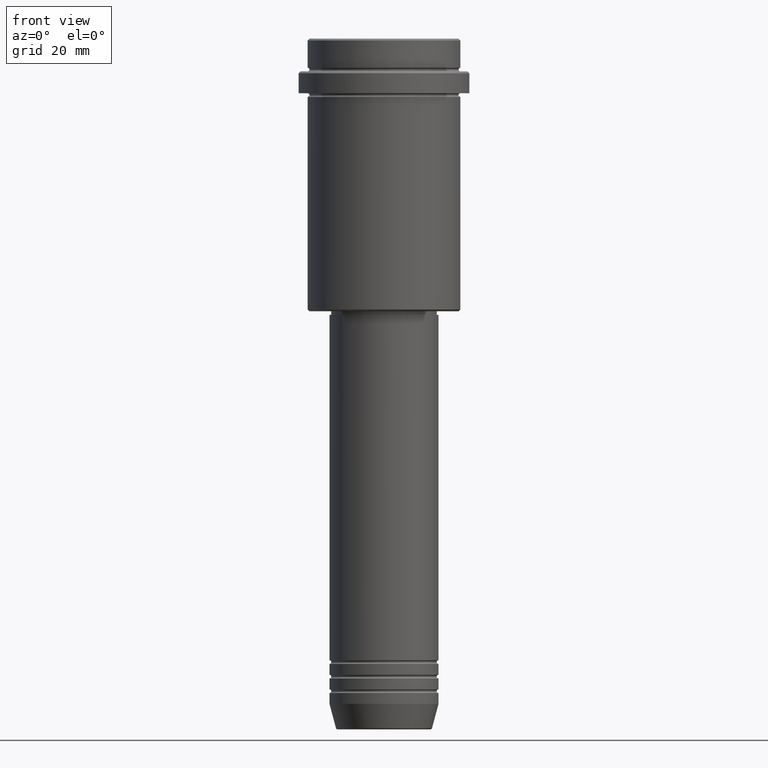
[diagram: clean part render]
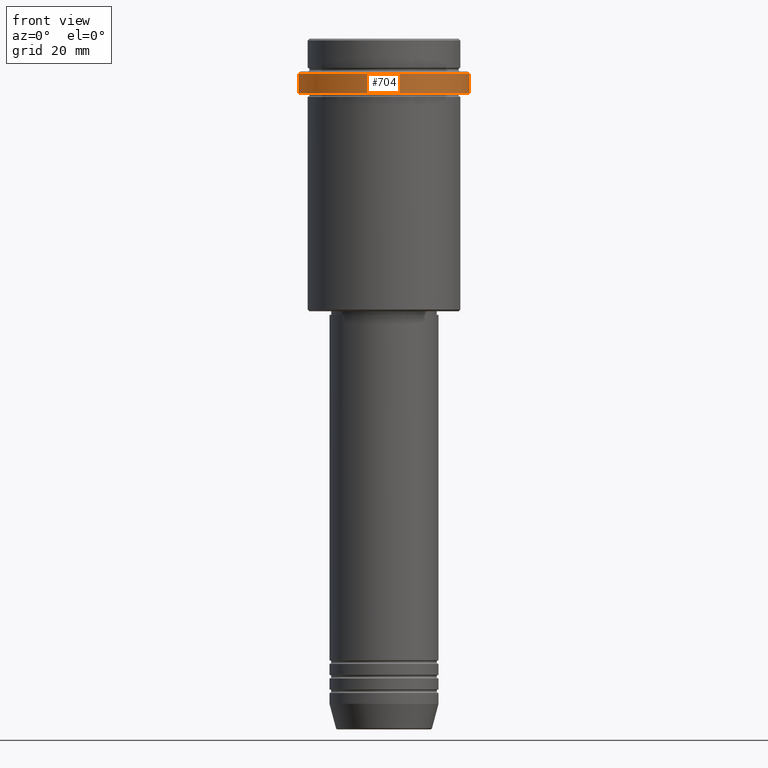
[diagram: same view with one face highlighted and labeled with its STEP entity id]
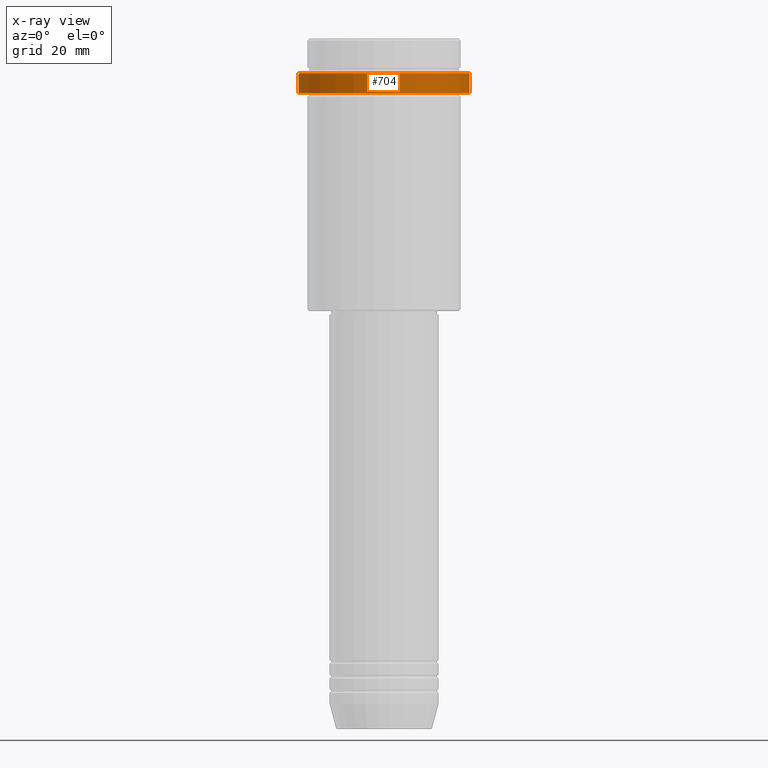
[diagram: x-ray of the same camera — body ghosted, the highlighted face saturated]
A machine part, front view. The second image highlights one B-rep face of the part: STEP entity #704.
The next image is the same camera in x-ray: the body ghosted, the highlighted face saturated — about 0% of this face is hidden behind the body in this view.
In plain terms, the highlighted cylindrical surface (partial cylindrical patch) has radius 23.5 mm, axis along (-0, -0, 1).
Its self-contained STEP definition (entity closure, byte-faithful):
#72 = CIRCLE ( 'NONE', #625, 23.50000000000000000 ) ;
#78 = CARTESIAN_POINT ( 'NONE',  ( 23.50000000000000000, 0.000000000000000000, 0.000000000000000000 ) ) ;
#101 = EDGE_CURVE ( 'NONE', #1074, #863, #1263, .T. ) ;
#207 = ORIENTED_EDGE ( 'NONE', *, *, #1127, .T. ) ;
#222 = CARTESIAN_POINT ( 'NONE',  ( 23.50000000000000000, 0.000000000000000000, -9.500000000000000000 ) ) ;
#233 = AXIS2_PLACEMENT_3D ( 'NONE', #628, #751, #1280 ) ;
#240 = ORIENTED_EDGE ( 'NONE', *, *, #484, .F. ) ;
#245 = CARTESIAN_POINT ( 'NONE',  ( -23.50000000000000000, 2.877919977996280320E-15, 0.000000000000000000 ) ) ;
#339 = VERTEX_POINT ( 'NONE', #222 ) ;
#403 = DIRECTION ( 'NONE',  ( -0.000000000000000000, -0.000000000000000000, 1.000000000000000000 ) ) ;
#411 = VERTEX_POINT ( 'NONE', #1332 ) ;
#428 = DIRECTION ( 'NONE',  ( 1.000000000000000000, 0.000000000000000000, 0.000000000000000000 ) ) ;
#464 = LINE ( 'NONE', #245, #916 ) ;
#484 = EDGE_CURVE ( 'NONE', #1074, #411, #464, .T. ) ;
#514 = DIRECTION ( 'NONE',  ( -0.000000000000000000, -0.000000000000000000, 1.000000000000000000 ) ) ;
#543 = CARTESIAN_POINT ( 'NONE',  ( -23.50000000000000711, 2.877919977996281109E-15, -15.00000000000000000 ) ) ;
#625 = AXIS2_PLACEMENT_3D ( 'NONE', #1408, #1190, #428 ) ;
#628 = CARTESIAN_POINT ( 'NONE',  ( 0.000000000000000000, 0.000000000000000000, 0.000000000000000000 ) ) ;
#641 = CYLINDRICAL_SURFACE ( 'NONE', #233, 23.50000000000000000 ) ;
#657 = FACE_OUTER_BOUND ( 'NONE', #901, .T. ) ;
#704 = ADVANCED_FACE ( 'NONE', ( #657 ), #641, .T. ) ;
#725 = DIRECTION ( 'NONE',  ( 1.000000000000000000, 0.000000000000000000, 0.000000000000000000 ) ) ;
#751 = DIRECTION ( 'NONE',  ( -0.000000000000000000, -0.000000000000000000, 1.000000000000000000 ) ) ;
#830 = VECTOR ( 'NONE', #1090, 1000.000000000000000 ) ;
#863 = VERTEX_POINT ( 'NONE', #882 ) ;
#882 = CARTESIAN_POINT ( 'NONE',  ( 23.50000000000000355, 0.000000000000000000, -15.00000000000000000 ) ) ;
#901 = EDGE_LOOP ( 'NONE', ( #240, #1196, #207, #918 ) ) ;
#916 = VECTOR ( 'NONE', #514, 1000.000000000000000 ) ;
#918 = ORIENTED_EDGE ( 'NONE', *, *, #1073, .T. ) ;
#1013 = AXIS2_PLACEMENT_3D ( 'NONE', #1171, #403, #725 ) ;
#1073 = EDGE_CURVE ( 'NONE', #339, #411, #72, .T. ) ;
#1074 = VERTEX_POINT ( 'NONE', #543 ) ;
#1090 = DIRECTION ( 'NONE',  ( -0.000000000000000000, -0.000000000000000000, 1.000000000000000000 ) ) ;
#1127 = EDGE_CURVE ( 'NONE', #863, #339, #1184, .T. ) ;
#1171 = CARTESIAN_POINT ( 'NONE',  ( 0.000000000000000000, 0.000000000000000000, -15.00000000000000000 ) ) ;
#1184 = LINE ( 'NONE', #78, #830 ) ;
#1190 = DIRECTION ( 'NONE',  ( 0.000000000000000000, 0.000000000000000000, -1.000000000000000000 ) ) ;
#1196 = ORIENTED_EDGE ( 'NONE', *, *, #101, .T. ) ;
#1263 = CIRCLE ( 'NONE', #1013, 23.50000000000000355 ) ;
#1280 = DIRECTION ( 'NONE',  ( 1.000000000000000000, 0.000000000000000000, 0.000000000000000000 ) ) ;
#1332 = CARTESIAN_POINT ( 'NONE',  ( -23.50000000000000000, 2.877919977996280320E-15, -9.500000000000000000 ) ) ;
#1408 = CARTESIAN_POINT ( 'NONE',  ( 0.000000000000000000, 0.000000000000000000, -9.500000000000000000 ) ) ;